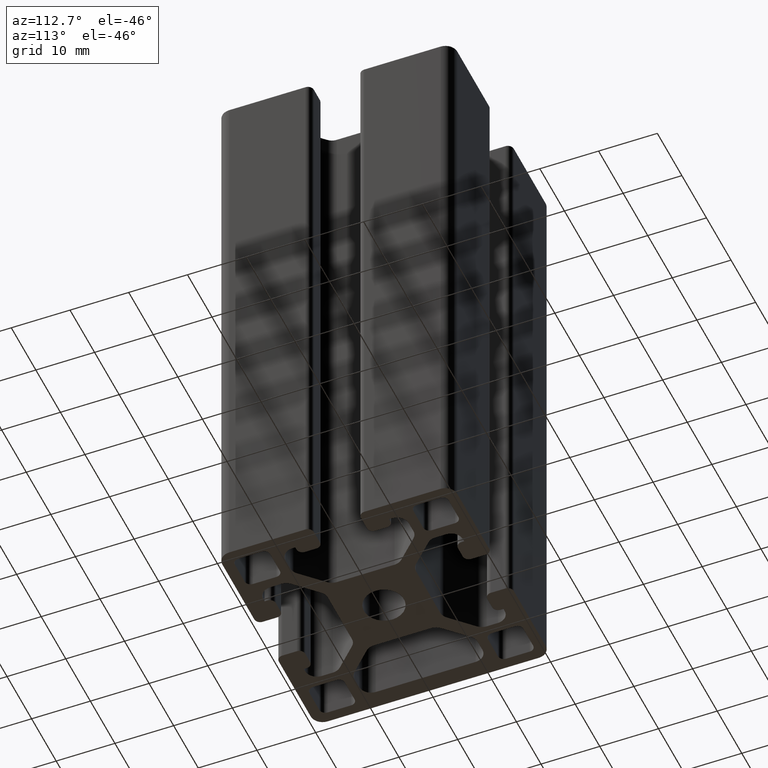
[diagram: clean part render]
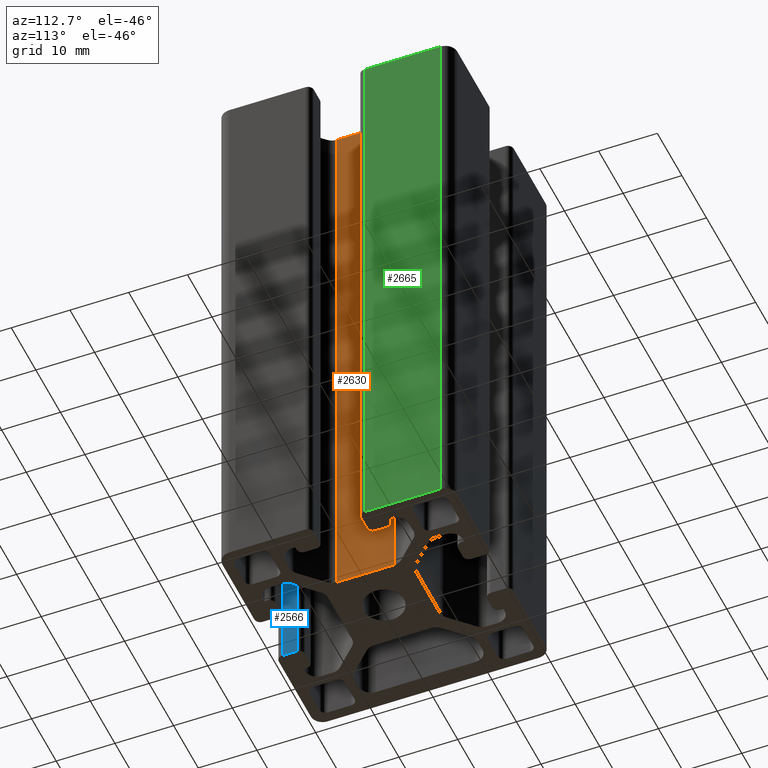
[diagram: same view with three faces highlighted in distinct colors, each labeled with its STEP entity id]
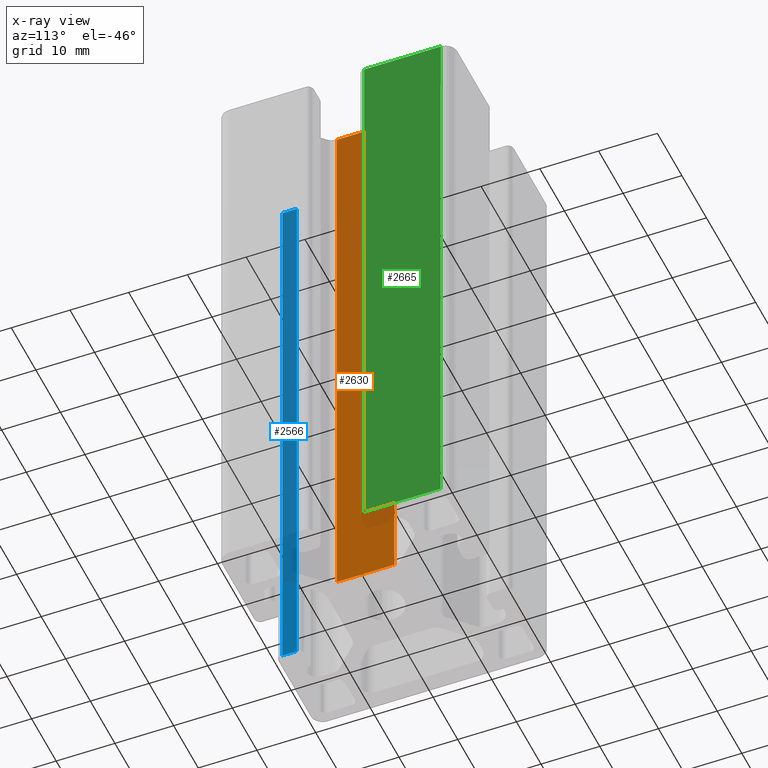
[diagram: x-ray of the same camera — body ghosted, the three highlighted faces saturated]
A machine part, auxiliary view with three faces highlighted in distinct colors.
The next image is the same camera in x-ray (body ghosted, the three faces saturated) — at least one of them is partly hidden behind the body in this view.
Their STEP definitions:

[orange] entity #2630 — the highlighted planar face has unit normal (-1, 0, 0).
#205=LINE('',#4290,#471);
#206=LINE('',#4294,#472);
#207=LINE('',#4296,#473);
#208=LINE('',#4297,#474);
#471=VECTOR('',#3496,100.);
#472=VECTOR('',#3501,9.80761184457488);
#473=VECTOR('',#3502,100.);
#474=VECTOR('',#3503,9.80761184457488);
#594=PLANE('',#2859);
#724=FACE_OUTER_BOUND('',#858,.T.);
#858=EDGE_LOOP('',(#2063,#2064,#2065,#2066));
#1229=VERTEX_POINT('',#4287);
#1230=VERTEX_POINT('',#4289);
#1231=VERTEX_POINT('',#4293);
#1232=VERTEX_POINT('',#4295);
#1580=EDGE_CURVE('',#1230,#1229,#205,.T.);
#1582=EDGE_CURVE('',#1231,#1229,#206,.T.);
#1583=EDGE_CURVE('',#1232,#1231,#207,.T.);
#1584=EDGE_CURVE('',#1230,#1232,#208,.T.);
#2063=ORIENTED_EDGE('',*,*,#1582,.F.);
#2064=ORIENTED_EDGE('',*,*,#1583,.F.);
#2065=ORIENTED_EDGE('',*,*,#1584,.F.);
#2066=ORIENTED_EDGE('',*,*,#1580,.T.);
#2630=ADVANCED_FACE('',(#724),#594,.F.);
#2859=AXIS2_PLACEMENT_3D('',#4292,#3499,#3500);
#3496=DIRECTION('',(0.,0.,1.));
#3499=DIRECTION('center_axis',(-1.,0.,0.));
#3500=DIRECTION('ref_axis',(0.,-1.,0.));
#3501=DIRECTION('',(0.,1.,0.));
#3502=DIRECTION('',(0.,0.,1.));
#3503=DIRECTION('',(0.,-1.,0.));
#4287=CARTESIAN_POINT('',(7.5,4.90380592228743,100.));
#4289=CARTESIAN_POINT('',(7.5,4.90380592228743,0.));
#4290=CARTESIAN_POINT('',(7.5,4.90380592228743,0.));
#4292=CARTESIAN_POINT('Origin',(7.5,4.90380592228743,0.));
#4293=CARTESIAN_POINT('',(7.5,-4.90380592228745,100.));
#4294=CARTESIAN_POINT('',(7.5,2.45190296114371,100.));
#4295=CARTESIAN_POINT('',(7.5,-4.90380592228745,0.));
#4296=CARTESIAN_POINT('',(7.5,-4.90380592228745,0.));
#4297=CARTESIAN_POINT('',(7.5,2.45190296114371,0.));

[blue] entity #2566 — the highlighted planar face has unit normal (-1, 0, 0).
#71=LINE('',#3895,#337);
#73=LINE('',#3901,#339);
#74=LINE('',#3903,#340);
#75=LINE('',#3904,#341);
#337=VECTOR('',#3110,100.);
#339=VECTOR('',#3116,2.5000039918977);
#340=VECTOR('',#3117,100.);
#341=VECTOR('',#3118,2.5000039918977);
#561=PLANE('',#2733);
#660=FACE_OUTER_BOUND('',#794,.T.);
#794=EDGE_LOOP('',(#1807,#1808,#1809,#1810));
#1093=VERTEX_POINT('',#3891);
#1095=VERTEX_POINT('',#3894);
#1097=VERTEX_POINT('',#3900);
#1098=VERTEX_POINT('',#3902);
#1384=EDGE_CURVE('',#1095,#1093,#71,.T.);
#1387=EDGE_CURVE('',#1097,#1093,#73,.T.);
#1388=EDGE_CURVE('',#1098,#1097,#74,.T.);
#1389=EDGE_CURVE('',#1095,#1098,#75,.T.);
#1807=ORIENTED_EDGE('',*,*,#1387,.F.);
#1808=ORIENTED_EDGE('',*,*,#1388,.F.);
#1809=ORIENTED_EDGE('',*,*,#1389,.F.);
#1810=ORIENTED_EDGE('',*,*,#1384,.T.);
#2566=ADVANCED_FACE('',(#660),#561,.F.);
#2733=AXIS2_PLACEMENT_3D('',#3899,#3114,#3115);
#3110=DIRECTION('',(0.,0.,1.));
#3114=DIRECTION('center_axis',(-1.,0.,0.));
#3115=DIRECTION('ref_axis',(0.,-1.,0.));
#3116=DIRECTION('',(0.,1.,0.));
#3117=DIRECTION('',(0.,0.,1.));
#3118=DIRECTION('',(0.,-1.,0.));
#3891=CARTESIAN_POINT('',(-3.99999999999999,-16.4999980040511,100.));
#3894=CARTESIAN_POINT('',(-3.99999999999999,-16.4999980040511,0.));
#3895=CARTESIAN_POINT('',(-3.99999999999999,-16.4999980040511,0.));
#3899=CARTESIAN_POINT('Origin',(-3.99999999999999,-16.4999980040511,0.));
#3900=CARTESIAN_POINT('',(-3.99999999999999,-19.0000019959488,100.));
#3901=CARTESIAN_POINT('',(-3.99999999999999,-8.24999900202557,100.));
#3902=CARTESIAN_POINT('',(-3.99999999999999,-19.0000019959488,0.));
#3903=CARTESIAN_POINT('',(-3.99999999999999,-19.0000019959488,0.));
#3904=CARTESIAN_POINT('',(-3.99999999999999,-8.24999900202557,0.));

[green] entity #2665 — the highlighted planar face has unit normal (1, 0, 0).
#182=LINE('',#4225,#448);
#270=LINE('',#4473,#536);
#277=LINE('',#4494,#543);
#278=LINE('',#4496,#544);
#448=VECTOR('',#3433,100.);
#536=VECTOR('',#3677,13.0000019959489);
#543=VECTOR('',#3702,100.);
#544=VECTOR('',#3705,13.0000019959489);
#614=PLANE('',#2925);
#759=FACE_OUTER_BOUND('',#899,.T.);
#899=EDGE_LOOP('',(#2330,#2331,#2332,#2333));
#1206=VERTEX_POINT('',#4219);
#1208=VERTEX_POINT('',#4223);
#1290=VERTEX_POINT('',#4471);
#1295=VERTEX_POINT('',#4492);
#1548=EDGE_CURVE('',#1206,#1208,#182,.T.);
#1673=EDGE_CURVE('',#1290,#1208,#270,.T.);
#1684=EDGE_CURVE('',#1290,#1295,#277,.T.);
#1685=EDGE_CURVE('',#1295,#1206,#278,.T.);
#2330=ORIENTED_EDGE('',*,*,#1548,.T.);
#2331=ORIENTED_EDGE('',*,*,#1673,.F.);
#2332=ORIENTED_EDGE('',*,*,#1684,.T.);
#2333=ORIENTED_EDGE('',*,*,#1685,.T.);
#2665=ADVANCED_FACE('',(#759),#614,.T.);
#2925=AXIS2_PLACEMENT_3D('',#4495,#3703,#3704);
#3433=DIRECTION('',(0.,0.,-1.));
#3677=DIRECTION('',(0.,-1.,0.));
#3702=DIRECTION('',(0.,0.,1.));
#3703=DIRECTION('center_axis',(1.,0.,0.));
#3704=DIRECTION('ref_axis',(0.,1.,0.));
#3705=DIRECTION('',(0.,-1.,0.));
#4219=CARTESIAN_POINT('',(20.,4.99999800405114,100.));
#4223=CARTESIAN_POINT('',(20.,4.99999800405114,0.));
#4225=CARTESIAN_POINT('',(20.,4.99999800405114,0.));
#4471=CARTESIAN_POINT('',(20.,18.,0.));
#4473=CARTESIAN_POINT('',(20.,-9.,0.));
#4492=CARTESIAN_POINT('',(20.,18.,100.));
#4494=CARTESIAN_POINT('',(20.,18.,0.));
#4495=CARTESIAN_POINT('Origin',(20.,-18.,0.));
#4496=CARTESIAN_POINT('',(20.,-9.,100.));